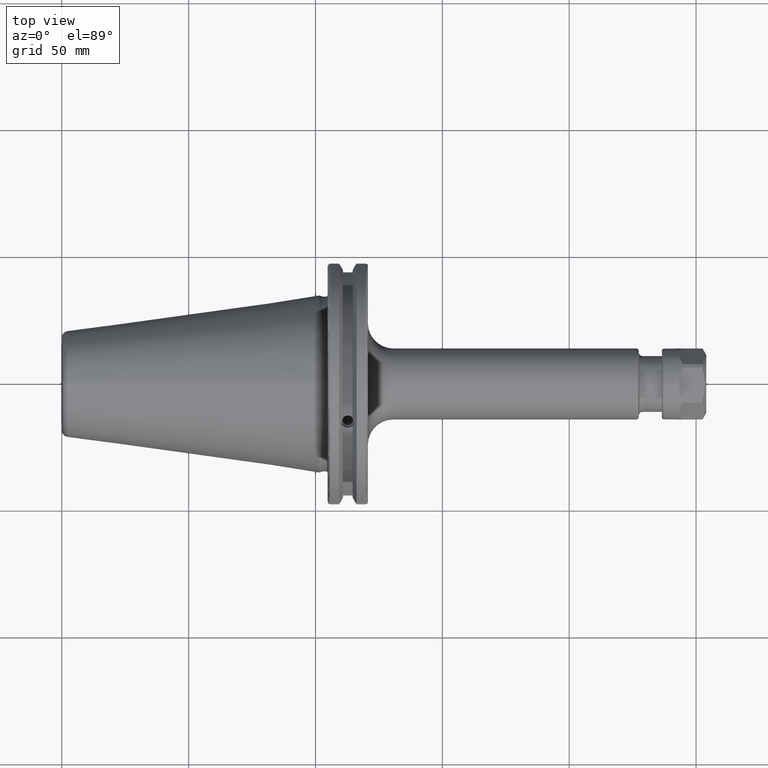
[diagram: clean part render]
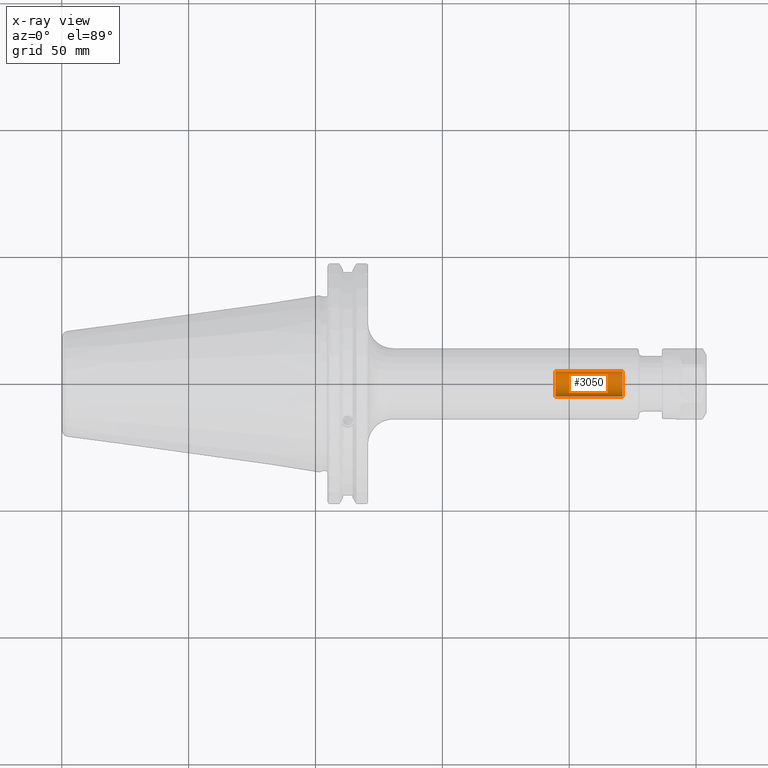
[diagram: x-ray — body ghosted, one internal face saturated and labeled with its STEP entity id]
A machine part, top view, then the same camera in x-ray: the body is ghosted and one INTERNAL B-rep face — a face not visible from any outside direction — is saturated and labeled: STEP entity #3050.
In plain terms, the highlighted cylindrical surface (edge-blend (fillet) strip) has radius 5.0038 mm, axis along (1, 0, 0).
Its self-contained STEP definition (entity closure, byte-faithful):
#648=CARTESIAN_POINT('',(3.659321996131E0,0.E0,0.E0));
#649=DIRECTION('',(1.E0,0.E0,0.E0));
#650=DIRECTION('',(0.E0,-1.E0,0.E0));
#651=AXIS2_PLACEMENT_3D('',#648,#649,#650);
#658=DIRECTION('',(1.E0,0.E0,0.E0));
#659=VECTOR('',#658,1.042955572004E0);
#660=CARTESIAN_POINT('',(3.659321996131E0,-1.97E-1,0.E0));
#661=LINE('',#660,#659);
#662=DIRECTION('',(1.E0,0.E0,0.E0));
#663=VECTOR('',#662,1.042955572004E0);
#664=CARTESIAN_POINT('',(3.659321996131E0,1.97E-1,0.E0));
#665=LINE('',#664,#663);
#1895=CARTESIAN_POINT('',(4.702277568136E0,0.E0,0.E0));
#1896=DIRECTION('',(1.E0,0.E0,0.E0));
#1897=DIRECTION('',(0.E0,-1.E0,0.E0));
#1898=AXIS2_PLACEMENT_3D('',#1895,#1896,#1897);
#2251=CARTESIAN_POINT('',(4.702277568136E0,-1.97E-1,0.E0));
#2252=CARTESIAN_POINT('',(4.702277568136E0,1.97E-1,0.E0));
#2253=VERTEX_POINT('',#2251);
#2254=VERTEX_POINT('',#2252);
#2273=CARTESIAN_POINT('',(3.659321996131E0,-1.97E-1,0.E0));
#2274=CARTESIAN_POINT('',(3.659321996131E0,1.97E-1,0.E0));
#2275=VERTEX_POINT('',#2273);
#2276=VERTEX_POINT('',#2274);
#3036=CARTESIAN_POINT('',(-5.332065E0,0.E0,0.E0));
#3037=DIRECTION('',(1.E0,0.E0,0.E0));
#3038=DIRECTION('',(0.E0,-1.E0,0.E0));
#3039=AXIS2_PLACEMENT_3D('',#3036,#3037,#3038);
#3040=CYLINDRICAL_SURFACE('',#3039,1.97E-1);
#3041=ORIENTED_EDGE('',*,*,#3026,.T.);
#3043=ORIENTED_EDGE('',*,*,#3042,.T.);
#3045=ORIENTED_EDGE('',*,*,#3044,.F.);
#3047=ORIENTED_EDGE('',*,*,#3046,.F.);
#3048=EDGE_LOOP('',(#3041,#3043,#3045,#3047));
#3049=FACE_OUTER_BOUND('',#3048,.F.);
#3050=ADVANCED_FACE('',(#3049),#3040,.F.);
#652=CIRCLE('',#651,1.97E-1);
#1899=CIRCLE('',#1898,1.97E-1);
#3026=EDGE_CURVE('',#2275,#2276,#652,.T.);
#3042=EDGE_CURVE('',#2276,#2254,#665,.T.);
#3044=EDGE_CURVE('',#2253,#2254,#1899,.T.);
#3046=EDGE_CURVE('',#2275,#2253,#661,.T.);